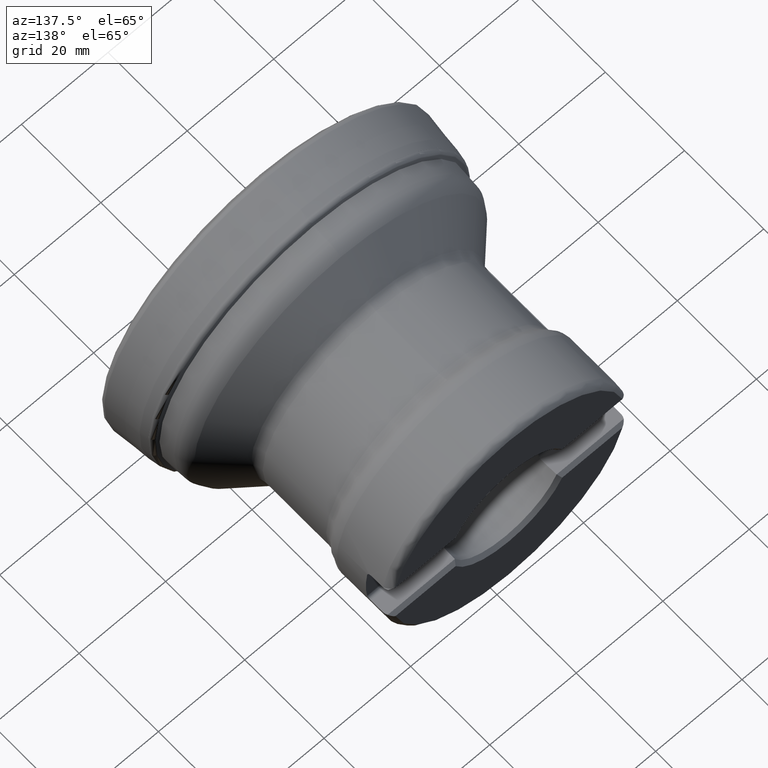
[diagram: clean part render]
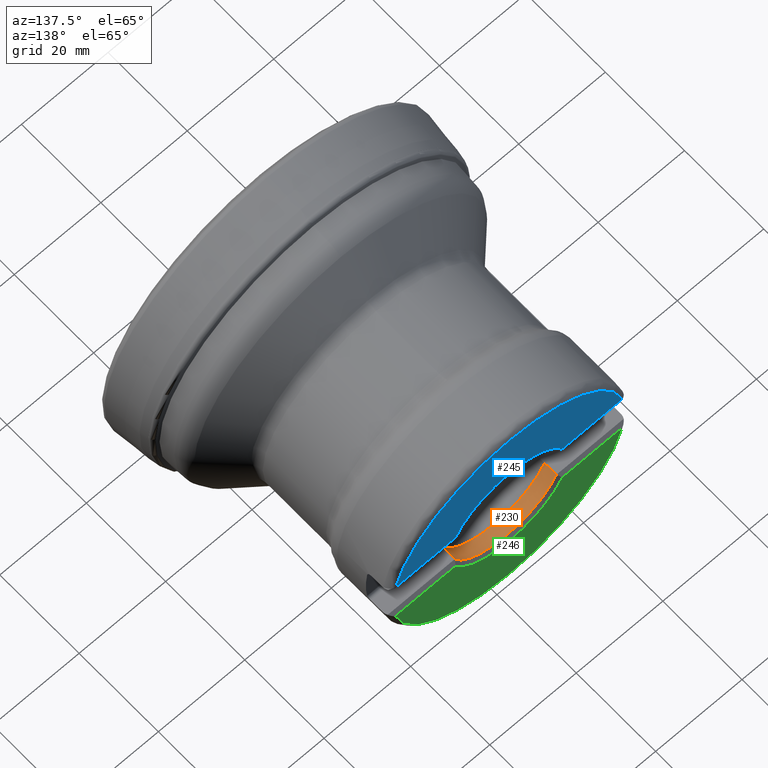
[diagram: same view with three faces highlighted in distinct colors, each labeled with its STEP entity id]
A machine part, auxiliary view with three faces highlighted in distinct colors.
Their STEP definitions:

[orange] entity #230 — the highlighted conical surface has half-angle 1.5 deg.
#173=CONICAL_SURFACE('',#1128,12.7,1.49999999999998);
#201=FACE_OUTER_BOUND('',#513,.T.);
#230=ADVANCED_FACE('',(#201),#173,.F.);
#309=B_SPLINE_CURVE_WITH_KNOTS('',3,(#1724,#1725,#1726,#1727,#1728,#1729,
#1730),.UNSPECIFIED.,.F.,.F.,(4,3,4),(0.,0.650319963331891,1.),
 .UNSPECIFIED.);
#312=B_SPLINE_CURVE_WITH_KNOTS('',3,(#1748,#1749,#1750,#1751,#1752,#1753,
#1754),.UNSPECIFIED.,.F.,.F.,(4,3,4),(0.,0.349680036668109,1.),
 .UNSPECIFIED.);
#513=EDGE_LOOP('',(#703,#704,#705,#706));
#703=ORIENTED_EDGE('',*,*,#970,.F.);
#704=ORIENTED_EDGE('',*,*,#983,.T.);
#705=ORIENTED_EDGE('',*,*,#964,.F.);
#706=ORIENTED_EDGE('',*,*,#982,.T.);
#866=VERTEX_POINT('',#1731);
#867=VERTEX_POINT('',#1732);
#870=VERTEX_POINT('',#1747);
#871=VERTEX_POINT('',#1755);
#964=EDGE_CURVE('',#866,#867,#309,.T.);
#970=EDGE_CURVE('',#870,#871,#312,.T.);
#982=EDGE_CURVE('',#866,#871,#1050,.T.);
#983=EDGE_CURVE('',#870,#867,#1051,.T.);
#1050=CIRCLE('',#1125,12.7);
#1051=CIRCLE('',#1127,12.7779944518504);
#1125=AXIS2_PLACEMENT_3D('',#1795,#1283,#1284);
#1127=AXIS2_PLACEMENT_3D('',#1797,#1287,#1288);
#1128=AXIS2_PLACEMENT_3D('',#1798,#1289,#1290);
#1283=DIRECTION('',(0.,-1.,0.));
#1284=DIRECTION('',(0.,0.,1.));
#1287=DIRECTION('',(0.,1.,0.));
#1288=DIRECTION('',(0.,0.,1.));
#1289=DIRECTION('',(0.,1.,0.));
#1290=DIRECTION('',(0.,-2.14130779178621E-15,1.));
#1724=CARTESIAN_POINT('',(-11.6892589585482,59.2,-4.965));
#1725=CARTESIAN_POINT('',(-11.7076279828764,59.8456564375275,-4.965));
#1726=CARTESIAN_POINT('',(-11.7259903950019,60.4913130632061,-4.965));
#1727=CARTESIAN_POINT('',(-11.7443462875177,61.1369698742021,-4.965));
#1728=CARTESIAN_POINT('',(-11.7542163353932,61.484142512645,-4.965));
#1729=CARTESIAN_POINT('',(-11.7640844982478,61.8313152046837,-4.965));
#1730=CARTESIAN_POINT('',(-11.7739507902624,62.1784879498846,-4.965));
#1731=CARTESIAN_POINT('',(-11.6892589585482,59.2,-4.965));
#1732=CARTESIAN_POINT('',(-11.7739507902624,62.1784879498846,-4.965));
#1747=CARTESIAN_POINT('',(11.7739507902624,62.1784879498846,-4.965));
#1748=CARTESIAN_POINT('',(11.7739507902624,62.1784879498846,-4.965));
#1749=CARTESIAN_POINT('',(11.7640844982478,61.8313152046837,-4.965));
#1750=CARTESIAN_POINT('',(11.7542163353932,61.484142512645,-4.965));
#1751=CARTESIAN_POINT('',(11.7443462875177,61.1369698742021,-4.965));
#1752=CARTESIAN_POINT('',(11.7259903950019,60.4913130632061,-4.965));
#1753=CARTESIAN_POINT('',(11.7076279828764,59.8456564375275,-4.965));
#1754=CARTESIAN_POINT('',(11.6892589585482,59.2,-4.965));
#1755=CARTESIAN_POINT('',(11.6892589585482,59.2,-4.965));
#1795=CARTESIAN_POINT('',(0.,59.2,0.));
#1797=CARTESIAN_POINT('',(0.,62.1784879498846,0.));
#1798=CARTESIAN_POINT('',(0.,59.2,0.));

[blue] entity #245 — the highlighted planar face has unit normal (0, -1, 0).
#164=PLANE('',#1155);
#203=FACE_OUTER_BOUND('',#541,.T.);
#245=ADVANCED_FACE('',(#203),#164,.F.);
#363=LINE('',#1837,#391);
#364=LINE('',#1838,#392);
#391=VECTOR('',#1343,1.);
#392=VECTOR('',#1344,1.);
#541=EDGE_LOOP('',(#737,#738,#739,#740));
#737=ORIENTED_EDGE('',*,*,#995,.T.);
#738=ORIENTED_EDGE('',*,*,#996,.T.);
#739=ORIENTED_EDGE('',*,*,#939,.T.);
#740=ORIENTED_EDGE('',*,*,#997,.T.);
#848=VERTEX_POINT('',#1585);
#849=VERTEX_POINT('',#1586);
#889=VERTEX_POINT('',#1835);
#890=VERTEX_POINT('',#1836);
#939=EDGE_CURVE('',#848,#849,#1039,.T.);
#995=EDGE_CURVE('',#889,#890,#1063,.T.);
#996=EDGE_CURVE('',#890,#848,#363,.T.);
#997=EDGE_CURVE('',#849,#889,#364,.T.);
#1039=CIRCLE('',#1100,26.8717797887081);
#1063=CIRCLE('',#1154,13.5995065019628);
#1100=AXIS2_PLACEMENT_3D('',#1584,#1217,#1218);
#1154=AXIS2_PLACEMENT_3D('',#1834,#1341,#1342);
#1155=AXIS2_PLACEMENT_3D('',#1839,#1345,#1346);
#1217=DIRECTION('',(0.,1.,0.));
#1218=DIRECTION('',(0.,0.,-1.));
#1341=DIRECTION('',(0.,-1.,0.));
#1342=DIRECTION('',(0.,0.,-1.));
#1343=DIRECTION('',(-1.,0.,0.));
#1344=DIRECTION('',(-1.,0.,0.));
#1345=DIRECTION('',(0.,-1.,0.));
#1346=DIRECTION('',(0.,0.,-1.));
#1584=CARTESIAN_POINT('',(0.,62.999999999997,0.));
#1585=CARTESIAN_POINT('',(-26.2460915949941,62.999999999997,5.765));
#1586=CARTESIAN_POINT('',(26.2460915949941,62.999999999997,5.765));
#1834=CARTESIAN_POINT('',(0.,62.999999999997,0.));
#1835=CARTESIAN_POINT('',(12.3171162248689,62.999999999997,5.765));
#1836=CARTESIAN_POINT('',(-12.3171162248689,62.999999999997,5.76499999999997));
#1837=CARTESIAN_POINT('',(-26.4091144117613,62.999999999997,5.765));
#1838=CARTESIAN_POINT('',(11.7972938292555,62.999999999997,5.765));
#1839=CARTESIAN_POINT('',(0.,62.999999999997,-15.4825));

[green] entity #246 — the highlighted planar face has unit normal (0, -1, 0).
#165=PLANE('',#1157);
#204=FACE_OUTER_BOUND('',#542,.T.);
#246=ADVANCED_FACE('',(#204),#165,.F.);
#365=LINE('',#1840,#393);
#366=LINE('',#1844,#394);
#393=VECTOR('',#1347,1.);
#394=VECTOR('',#1350,1.);
#542=EDGE_LOOP('',(#741,#742,#743,#744));
#741=ORIENTED_EDGE('',*,*,#936,.T.);
#742=ORIENTED_EDGE('',*,*,#998,.T.);
#743=ORIENTED_EDGE('',*,*,#999,.T.);
#744=ORIENTED_EDGE('',*,*,#1000,.T.);
#845=VERTEX_POINT('',#1562);
#846=VERTEX_POINT('',#1564);
#891=VERTEX_POINT('',#1841);
#892=VERTEX_POINT('',#1843);
#936=EDGE_CURVE('',#846,#845,#1038,.T.);
#998=EDGE_CURVE('',#845,#891,#365,.T.);
#999=EDGE_CURVE('',#891,#892,#1064,.T.);
#1000=EDGE_CURVE('',#892,#846,#366,.T.);
#1038=CIRCLE('',#1098,26.8717797887081);
#1064=CIRCLE('',#1156,13.5995065019628);
#1098=AXIS2_PLACEMENT_3D('',#1563,#1213,#1214);
#1156=AXIS2_PLACEMENT_3D('',#1842,#1348,#1349);
#1157=AXIS2_PLACEMENT_3D('',#1845,#1351,#1352);
#1213=DIRECTION('',(0.,1.,0.));
#1214=DIRECTION('',(0.,0.,-1.));
#1347=DIRECTION('',(1.,0.,0.));
#1348=DIRECTION('',(0.,-1.,0.));
#1349=DIRECTION('',(0.,0.,-1.));
#1350=DIRECTION('',(1.,0.,0.));
#1351=DIRECTION('',(0.,-1.,0.));
#1352=DIRECTION('',(0.,0.,-1.));
#1562=CARTESIAN_POINT('',(-26.2460915949941,62.999999999997,-5.765));
#1563=CARTESIAN_POINT('',(0.,62.999999999997,0.));
#1564=CARTESIAN_POINT('',(26.2460915949941,62.999999999997,-5.765));
#1840=CARTESIAN_POINT('',(-11.7972938292555,62.999999999997,-5.765));
#1841=CARTESIAN_POINT('',(-12.3171162248689,62.999999999997,-5.76499999999997));
#1842=CARTESIAN_POINT('',(0.,62.999999999997,0.));
#1843=CARTESIAN_POINT('',(12.3171162248689,62.999999999997,-5.765));
#1844=CARTESIAN_POINT('',(26.4091144117466,62.999999999997,-5.765));
#1845=CARTESIAN_POINT('',(0.,62.999999999997,-15.4825));